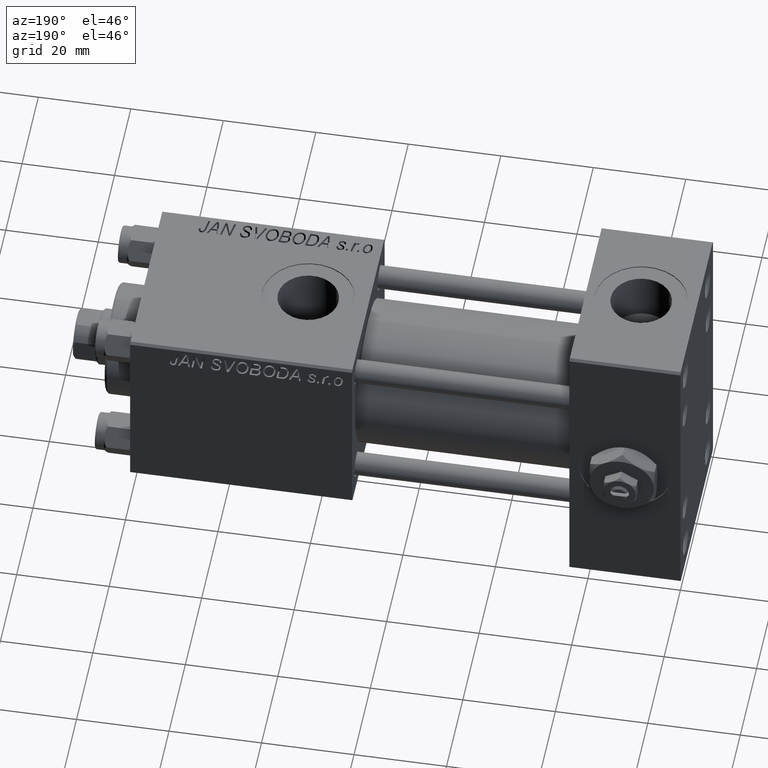
[diagram: clean part render]
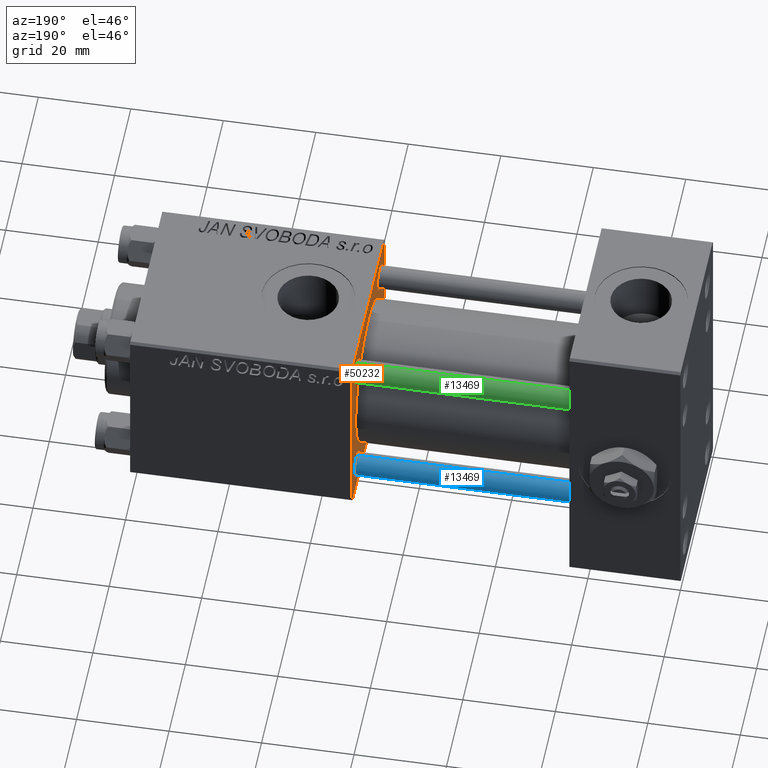
[diagram: same view with three faces highlighted in distinct colors, each labeled with its STEP entity id]
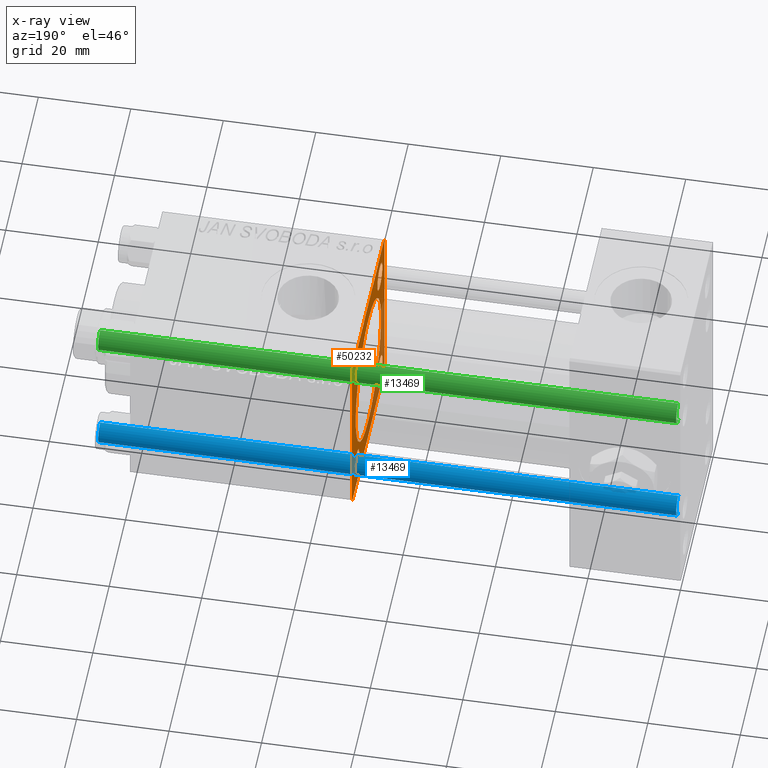
[diagram: x-ray of the same camera — body ghosted, the three highlighted faces saturated]
A machine part, auxiliary view with three faces highlighted in distinct colors.
The next image is the same camera in x-ray (body ghosted, the three faces saturated) — at least one of them is partly hidden behind the body in this view.
Their STEP definitions:

[orange] entity #50232 — the highlighted planar face has unit normal (-1, 0, 0).
#14 = LINE ( 'NONE', #50647, #41005 ) ;
#821 = DIRECTION ( 'NONE',  ( 0.000000000000000000, 0.000000000000000000, 1.000000000000000000 ) ) ;
#933 = EDGE_CURVE ( 'NONE', #18471, #26745, #13294, .T. ) ;
#1579 = AXIS2_PLACEMENT_3D ( 'NONE', #20733, #11840, #7910 ) ;
#1607 = ORIENTED_EDGE ( 'NONE', *, *, #14541, .T. ) ;
#1631 = CARTESIAN_POINT ( 'NONE',  ( 71.00000000000001421, -7.038826752868131828E-16, -15.50000000000000000 ) ) ;
#1690 = AXIS2_PLACEMENT_3D ( 'NONE', #20194, #44464, #8160 ) ;
#1750 = DIRECTION ( 'NONE',  ( 0.000000000000000000, 0.000000000000000000, -1.000000000000000000 ) ) ;
#2296 = CARTESIAN_POINT ( 'NONE',  ( 71.00000000000001421, 19.99999999999999645, 20.00000000000000000 ) ) ;
#2523 = DIRECTION ( 'NONE',  ( 1.000000000000000000, 0.000000000000000000, 0.000000000000000000 ) ) ;
#2764 = VERTEX_POINT ( 'NONE', #47558 ) ;
#2965 = DIRECTION ( 'NONE',  ( 1.000000000000000000, 0.000000000000000000, 0.000000000000000000 ) ) ;
#3031 = CARTESIAN_POINT ( 'NONE',  ( 71.00000000000001421, -20.00000000000000355, 19.49999999999999645 ) ) ;
#3067 = DIRECTION ( 'NONE',  ( 0.000000000000000000, -1.000000000000000000, -8.673617379884035472E-17 ) ) ;
#3940 = VERTEX_POINT ( 'NONE', #9694 ) ;
#3988 = AXIS2_PLACEMENT_3D ( 'NONE', #38320, #2523, #34413 ) ;
#4296 = EDGE_CURVE ( 'NONE', #34609, #42202, #51476, .T. ) ;
#4466 = DIRECTION ( 'NONE',  ( 0.000000000000000000, 0.7071067811865474617, -0.7071067811865474617 ) ) ;
#4740 = EDGE_CURVE ( 'NONE', #37653, #11017, #18156, .T. ) ;
#4786 = FACE_BOUND ( 'NONE', #42672, .T. ) ;
#5438 = DIRECTION ( 'NONE',  ( 0.000000000000000000, 8.673617379884036705E-17, -1.000000000000000000 ) ) ;
#5608 = EDGE_LOOP ( 'NONE', ( #14277, #1607 ) ) ;
#5635 = EDGE_CURVE ( 'NONE', #40378, #18471, #40752, .T. ) ;
#5703 = VERTEX_POINT ( 'NONE', #44149 ) ;
#5793 = CARTESIAN_POINT ( 'NONE',  ( 71.00000000000001421, -19.75000000000000000, 19.75000000000000000 ) ) ;
#7348 = EDGE_LOOP ( 'NONE', ( #34075, #43562 ) ) ;
#7397 = VECTOR ( 'NONE', #3067, 1000.000000000000000 ) ;
#7533 = AXIS2_PLACEMENT_3D ( 'NONE', #27433, #43325, #7553 ) ;
#7553 = DIRECTION ( 'NONE',  ( 0.000000000000000000, 0.000000000000000000, 1.000000000000000000 ) ) ;
#7578 = EDGE_CURVE ( 'NONE', #40378, #3940, #34692, .T. ) ;
#7638 = CARTESIAN_POINT ( 'NONE',  ( 71.00000000000001421, -14.15000000000000036, -14.15000000000000036 ) ) ;
#7910 = DIRECTION ( 'NONE',  ( -0.000000000000000000, 0.000000000000000000, 1.000000000000000000 ) ) ;
#8160 = DIRECTION ( 'NONE',  ( 0.000000000000000000, 0.000000000000000000, 1.000000000000000000 ) ) ;
#8443 = CARTESIAN_POINT ( 'NONE',  ( 71.00000000000001421, -2.602085213965210642E-15, 15.50000000000000000 ) ) ;
#8703 = FACE_BOUND ( 'NONE', #5608, .T. ) ;
#8892 = VECTOR ( 'NONE', #41229, 1000.000000000000000 ) ;
#9031 = EDGE_CURVE ( 'NONE', #37667, #5703, #34036, .T. ) ;
#9299 = CARTESIAN_POINT ( 'NONE',  ( 71.00000000000001421, -2.602085213965210642E-15, 0.000000000000000000 ) ) ;
#9694 = CARTESIAN_POINT ( 'NONE',  ( 71.00000000000001421, -19.50000000000000355, 19.99999999999999645 ) ) ;
#10116 = LINE ( 'NONE', #17708, #26950 ) ;
#10301 = ORIENTED_EDGE ( 'NONE', *, *, #5635, .T. ) ;
#10346 = ORIENTED_EDGE ( 'NONE', *, *, #29392, .T. ) ;
#10399 = DIRECTION ( 'NONE',  ( 1.000000000000000000, 0.000000000000000000, 0.000000000000000000 ) ) ;
#10814 = ORIENTED_EDGE ( 'NONE', *, *, #19829, .T. ) ;
#11017 = VERTEX_POINT ( 'NONE', #31880 ) ;
#11840 = DIRECTION ( 'NONE',  ( -1.000000000000000000, 0.000000000000000000, -0.000000000000000000 ) ) ;
#12319 = CARTESIAN_POINT ( 'NONE',  ( 71.00000000000001421, 19.99999999999999645, -19.50000000000000000 ) ) ;
#13294 = LINE ( 'NONE', #49288, #8892 ) ;
#14018 = VECTOR ( 'NONE', #4466, 1000.000000000000114 ) ;
#14277 = ORIENTED_EDGE ( 'NONE', *, *, #4296, .T. ) ;
#14431 = CARTESIAN_POINT ( 'NONE',  ( 71.00000000000001421, 14.15000000000000036, -11.15000000000001101 ) ) ;
#14541 = EDGE_CURVE ( 'NONE', #42202, #34609, #32575, .T. ) ;
#17219 = EDGE_CURVE ( 'NONE', #43189, #2764, #47898, .T. ) ;
#17286 = ORIENTED_EDGE ( 'NONE', *, *, #24345, .T. ) ;
#17702 = ORIENTED_EDGE ( 'NONE', *, *, #9031, .T. ) ;
#17708 = CARTESIAN_POINT ( 'NONE',  ( 71.00000000000001421, -20.00000000000000355, 19.99999999999999645 ) ) ;
#17883 = CARTESIAN_POINT ( 'NONE',  ( 71.00000000000001421, 14.15000000000000036, 17.15000000000003411 ) ) ;
#18147 = DIRECTION ( 'NONE',  ( 0.000000000000000000, 0.000000000000000000, 1.000000000000000000 ) ) ;
#18156 = CIRCLE ( 'NONE', #47322, 3.000000000000031974 ) ;
#18471 = VERTEX_POINT ( 'NONE', #29827 ) ;
#19829 = EDGE_CURVE ( 'NONE', #42987, #21002, #39420, .T. ) ;
#20145 = VECTOR ( 'NONE', #22700, 1000.000000000000000 ) ;
#20188 = AXIS2_PLACEMENT_3D ( 'NONE', #41976, #21390, #1750 ) ;
#20194 = CARTESIAN_POINT ( 'NONE',  ( 71.00000000000001421, 14.15000000000000036, -14.15000000000000036 ) ) ;
#20342 = CARTESIAN_POINT ( 'NONE',  ( 71.00000000000001421, -14.15000000000000036, -17.14999999999999147 ) ) ;
#20711 = EDGE_CURVE ( 'NONE', #38973, #2764, #10116, .T. ) ;
#20723 = EDGE_CURVE ( 'NONE', #20928, #29835, #36013, .T. ) ;
#20733 = CARTESIAN_POINT ( 'NONE',  ( 71.00000000000001421, 0.000000000000000000, 0.000000000000000000 ) ) ;
#20928 = VERTEX_POINT ( 'NONE', #1631 ) ;
#21002 = VERTEX_POINT ( 'NONE', #14431 ) ;
#21390 = DIRECTION ( 'NONE',  ( 1.000000000000000000, 0.000000000000000000, 0.000000000000000000 ) ) ;
#21747 = DIRECTION ( 'NONE',  ( -0.000000000000000000, 0.7071067811865474617, 0.7071067811865474617 ) ) ;
#22382 = AXIS2_PLACEMENT_3D ( 'NONE', #43372, #39200, #33830 ) ;
#22700 = DIRECTION ( 'NONE',  ( 0.000000000000000000, -1.000000000000000000, 0.000000000000000000 ) ) ;
#23336 = DIRECTION ( 'NONE',  ( 0.000000000000000000, 0.000000000000000000, 1.000000000000000000 ) ) ;
#23609 = AXIS2_PLACEMENT_3D ( 'NONE', #9299, #28664, #49226 ) ;
#23616 = FACE_BOUND ( 'NONE', #45890, .T. ) ;
#23636 = ORIENTED_EDGE ( 'NONE', *, *, #31727, .T. ) ;
#24184 = CARTESIAN_POINT ( 'NONE',  ( 71.00000000000001421, -19.74999999999973355, -19.75000000000028066 ) ) ;
#24265 = AXIS2_PLACEMENT_3D ( 'NONE', #7638, #43142, #23336 ) ;
#24345 = EDGE_CURVE ( 'NONE', #21002, #42987, #40077, .T. ) ;
#24664 = FACE_OUTER_BOUND ( 'NONE', #29366, .T. ) ;
#25366 = CIRCLE ( 'NONE', #32027, 3.000000000000031974 ) ;
#26339 = DIRECTION ( 'NONE',  ( 0.000000000000000000, 0.000000000000000000, 1.000000000000000000 ) ) ;
#26499 = CARTESIAN_POINT ( 'NONE',  ( 71.00000000000001421, 14.15000000000000036, -14.15000000000000036 ) ) ;
#26745 = VERTEX_POINT ( 'NONE', #12319 ) ;
#26950 = VECTOR ( 'NONE', #5438, 1000.000000000000000 ) ;
#27433 = CARTESIAN_POINT ( 'NONE',  ( 71.00000000000001421, -14.15000000000000036, 14.15000000000000036 ) ) ;
#27590 = CIRCLE ( 'NONE', #7533, 2.999999999999990674 ) ;
#27944 = ORIENTED_EDGE ( 'NONE', *, *, #7578, .F. ) ;
#28351 = DIRECTION ( 'NONE',  ( 0.000000000000000000, -0.7071067811865574537, 0.7071067811865376918 ) ) ;
#28664 = DIRECTION ( 'NONE',  ( 1.000000000000000000, 0.000000000000000000, 0.000000000000000000 ) ) ;
#28802 = CARTESIAN_POINT ( 'NONE',  ( 71.00000000000001421, -14.15000000000000036, -11.15000000000001101 ) ) ;
#28834 = FACE_BOUND ( 'NONE', #7348, .T. ) ;
#29284 = VECTOR ( 'NONE', #21747, 1000.000000000000114 ) ;
#29366 = EDGE_LOOP ( 'NONE', ( #47430, #40708, #42766, #31768, #27944, #10301, #40810, #23636 ) ) ;
#29392 = EDGE_CURVE ( 'NONE', #5703, #37667, #27590, .T. ) ;
#29827 = CARTESIAN_POINT ( 'NONE',  ( 71.00000000000001421, 19.99999999999999645, 19.50000000000000000 ) ) ;
#29835 = VERTEX_POINT ( 'NONE', #8443 ) ;
#29951 = EDGE_CURVE ( 'NONE', #38973, #3940, #41577, .T. ) ;
#30283 = LINE ( 'NONE', #50829, #20145 ) ;
#31188 = EDGE_CURVE ( 'NONE', #41763, #43189, #30283, .T. ) ;
#31727 = EDGE_CURVE ( 'NONE', #26745, #41763, #14, .T. ) ;
#31768 = ORIENTED_EDGE ( 'NONE', *, *, #29951, .T. ) ;
#31880 = CARTESIAN_POINT ( 'NONE',  ( 71.00000000000001421, 14.15000000000000036, 11.14999999999997016 ) ) ;
#31953 = PLANE ( 'NONE',  #1579 ) ;
#32027 = AXIS2_PLACEMENT_3D ( 'NONE', #46156, #10399, #26339 ) ;
#32155 = CARTESIAN_POINT ( 'NONE',  ( 71.00000000000001421, 19.74999999999999645, 19.74999999999999645 ) ) ;
#32575 = CIRCLE ( 'NONE', #24265, 2.999999999999990674 ) ;
#32787 = CIRCLE ( 'NONE', #23609, 15.50000000000000000 ) ;
#33227 = CARTESIAN_POINT ( 'NONE',  ( 71.00000000000001421, 14.15000000000000036, 14.15000000000000036 ) ) ;
#33830 = DIRECTION ( 'NONE',  ( 0.000000000000000000, 0.000000000000000000, 1.000000000000000000 ) ) ;
#34036 = CIRCLE ( 'NONE', #22382, 2.999999999999990674 ) ;
#34075 = ORIENTED_EDGE ( 'NONE', *, *, #4740, .T. ) ;
#34313 = EDGE_CURVE ( 'NONE', #29835, #20928, #32787, .T. ) ;
#34413 = DIRECTION ( 'NONE',  ( 0.000000000000000000, 0.000000000000000000, 1.000000000000000000 ) ) ;
#34609 = VERTEX_POINT ( 'NONE', #28802 ) ;
#34692 = LINE ( 'NONE', #2296, #7397 ) ;
#34708 = CARTESIAN_POINT ( 'NONE',  ( 71.00000000000001421, 14.15000000000000036, -17.14999999999999147 ) ) ;
#36013 = CIRCLE ( 'NONE', #20188, 15.50000000000000000 ) ;
#36216 = ORIENTED_EDGE ( 'NONE', *, *, #20723, .T. ) ;
#36282 = EDGE_CURVE ( 'NONE', #11017, #37653, #25366, .T. ) ;
#36393 = FACE_BOUND ( 'NONE', #46802, .T. ) ;
#37601 = ORIENTED_EDGE ( 'NONE', *, *, #34313, .T. ) ;
#37653 = VERTEX_POINT ( 'NONE', #17883 ) ;
#37667 = VERTEX_POINT ( 'NONE', #49694 ) ;
#38320 = CARTESIAN_POINT ( 'NONE',  ( 71.00000000000001421, -14.15000000000000036, -14.15000000000000036 ) ) ;
#38973 = VERTEX_POINT ( 'NONE', #3031 ) ;
#39200 = DIRECTION ( 'NONE',  ( 1.000000000000000000, 0.000000000000000000, 0.000000000000000000 ) ) ;
#39310 = VECTOR ( 'NONE', #28351, 999.9999999999998863 ) ;
#39420 = CIRCLE ( 'NONE', #46893, 2.999999999999990674 ) ;
#40077 = CIRCLE ( 'NONE', #1690, 2.999999999999990674 ) ;
#40378 = VERTEX_POINT ( 'NONE', #49420 ) ;
#40708 = ORIENTED_EDGE ( 'NONE', *, *, #17219, .T. ) ;
#40752 = LINE ( 'NONE', #32155, #14018 ) ;
#40810 = ORIENTED_EDGE ( 'NONE', *, *, #933, .T. ) ;
#41005 = VECTOR ( 'NONE', #43370, 1000.000000000000114 ) ;
#41229 = DIRECTION ( 'NONE',  ( 0.000000000000000000, 0.000000000000000000, -1.000000000000000000 ) ) ;
#41577 = LINE ( 'NONE', #5793, #29284 ) ;
#41763 = VERTEX_POINT ( 'NONE', #43624 ) ;
#41976 = CARTESIAN_POINT ( 'NONE',  ( 71.00000000000001421, -2.602085213965210642E-15, 0.000000000000000000 ) ) ;
#42202 = VERTEX_POINT ( 'NONE', #20342 ) ;
#42672 = EDGE_LOOP ( 'NONE', ( #17702, #10346 ) ) ;
#42766 = ORIENTED_EDGE ( 'NONE', *, *, #20711, .F. ) ;
#42987 = VERTEX_POINT ( 'NONE', #34708 ) ;
#43142 = DIRECTION ( 'NONE',  ( 1.000000000000000000, 0.000000000000000000, 0.000000000000000000 ) ) ;
#43189 = VERTEX_POINT ( 'NONE', #49518 ) ;
#43325 = DIRECTION ( 'NONE',  ( 1.000000000000000000, 0.000000000000000000, 0.000000000000000000 ) ) ;
#43370 = DIRECTION ( 'NONE',  ( -0.000000000000000000, -0.7071067811865474617, -0.7071067811865474617 ) ) ;
#43372 = CARTESIAN_POINT ( 'NONE',  ( 71.00000000000001421, -14.15000000000000036, 14.15000000000000036 ) ) ;
#43562 = ORIENTED_EDGE ( 'NONE', *, *, #36282, .T. ) ;
#43624 = CARTESIAN_POINT ( 'NONE',  ( 71.00000000000001421, 19.49999999999999645, -20.00000000000000000 ) ) ;
#44149 = CARTESIAN_POINT ( 'NONE',  ( 71.00000000000001421, -14.15000000000000036, 11.15000000000001279 ) ) ;
#44464 = DIRECTION ( 'NONE',  ( 1.000000000000000000, 0.000000000000000000, 0.000000000000000000 ) ) ;
#44961 = DIRECTION ( 'NONE',  ( 1.000000000000000000, 0.000000000000000000, 0.000000000000000000 ) ) ;
#45890 = EDGE_LOOP ( 'NONE', ( #37601, #36216 ) ) ;
#46156 = CARTESIAN_POINT ( 'NONE',  ( 71.00000000000001421, 14.15000000000000036, 14.15000000000000036 ) ) ;
#46802 = EDGE_LOOP ( 'NONE', ( #17286, #10814 ) ) ;
#46893 = AXIS2_PLACEMENT_3D ( 'NONE', #26499, #2965, #18147 ) ;
#47322 = AXIS2_PLACEMENT_3D ( 'NONE', #33227, #44961, #821 ) ;
#47430 = ORIENTED_EDGE ( 'NONE', *, *, #31188, .T. ) ;
#47558 = CARTESIAN_POINT ( 'NONE',  ( 71.00000000000001421, -20.00000000000000000, -19.50000000000002487 ) ) ;
#47898 = LINE ( 'NONE', #24184, #39310 ) ;
#49226 = DIRECTION ( 'NONE',  ( 0.000000000000000000, 0.000000000000000000, -1.000000000000000000 ) ) ;
#49288 = CARTESIAN_POINT ( 'NONE',  ( 71.00000000000001421, 19.99999999999999645, 20.00000000000000000 ) ) ;
#49420 = CARTESIAN_POINT ( 'NONE',  ( 71.00000000000001421, 19.49999999999999645, 20.00000000000000000 ) ) ;
#49518 = CARTESIAN_POINT ( 'NONE',  ( 71.00000000000001421, -19.50000000000001066, -20.00000000000000000 ) ) ;
#49694 = CARTESIAN_POINT ( 'NONE',  ( 71.00000000000001421, -14.15000000000000036, 17.14999999999999147 ) ) ;
#50232 = ADVANCED_FACE ( 'NONE', ( #4786, #28834, #36393, #8703, #23616, #24664 ), #31953, .T. ) ;
#50647 = CARTESIAN_POINT ( 'NONE',  ( 71.00000000000001421, 19.74999999999999645, -19.74999999999999645 ) ) ;
#50829 = CARTESIAN_POINT ( 'NONE',  ( 71.00000000000001421, 19.99999999999999645, -20.00000000000000000 ) ) ;
#51476 = CIRCLE ( 'NONE', #3988, 2.999999999999990674 ) ;

[blue] entity #13469 — the highlighted cylindrical surface (edge-blend (fillet) strip) has radius 2.5 mm, axis along (-1, 0, 0).
#584 = CARTESIAN_POINT ( 'NONE',  ( 0.000000000000000000, 0.000000000000000000, 125.5000000000000568 ) ) ;
#4180 = AXIS2_PLACEMENT_3D ( 'NONE', #48426, #19992, #20258 ) ;
#4964 = CIRCLE ( 'NONE', #51613, 2.500000000000000000 ) ;
#6126 = AXIS2_PLACEMENT_3D ( 'NONE', #45739, #38410, #18830 ) ;
#7799 = CIRCLE ( 'NONE', #6126, 2.500000000000000000 ) ;
#9642 = VERTEX_POINT ( 'NONE', #46377 ) ;
#13469 = ADVANCED_FACE ( 'NONE', ( #23928 ), #16859, .T. ) ;
#15187 = EDGE_CURVE ( 'NONE', #9642, #27916, #43011, .T. ) ;
#15872 = CARTESIAN_POINT ( 'NONE',  ( -2.500000000000000000, 0.000000000000000000, 0.5000000000000004441 ) ) ;
#16280 = CARTESIAN_POINT ( 'NONE',  ( 2.500000000000000000, 3.061616997868383141E-16, 126.0000000000000000 ) ) ;
#16552 = DIRECTION ( 'NONE',  ( 0.000000000000000000, 0.000000000000000000, -1.000000000000000000 ) ) ;
#16859 = CYLINDRICAL_SURFACE ( 'NONE', #4180, 2.500000000000000000 ) ;
#16948 = CARTESIAN_POINT ( 'NONE',  ( 2.500000000000000000, 3.061616997868383141E-16, 0.5000000000000004441 ) ) ;
#17950 = ORIENTED_EDGE ( 'NONE', *, *, #15187, .T. ) ;
#18329 = EDGE_CURVE ( 'NONE', #43347, #42278, #32471, .T. ) ;
#18715 = CARTESIAN_POINT ( 'NONE',  ( 2.500000000000000000, 3.061616997868383141E-16, 125.5000000000000568 ) ) ;
#18830 = DIRECTION ( 'NONE',  ( 1.000000000000000000, 0.000000000000000000, 0.000000000000000000 ) ) ;
#19992 = DIRECTION ( 'NONE',  ( -0.000000000000000000, -0.000000000000000000, -1.000000000000000000 ) ) ;
#20258 = DIRECTION ( 'NONE',  ( -1.000000000000000000, 0.000000000000000000, 0.000000000000000000 ) ) ;
#23928 = FACE_OUTER_BOUND ( 'NONE', #49926, .T. ) ;
#25621 = ORIENTED_EDGE ( 'NONE', *, *, #36799, .T. ) ;
#27120 = CARTESIAN_POINT ( 'NONE',  ( -2.500000000000000000, 0.000000000000000000, 126.0000000000000000 ) ) ;
#27916 = VERTEX_POINT ( 'NONE', #15872 ) ;
#32471 = LINE ( 'NONE', #16280, #43515 ) ;
#32480 = DIRECTION ( 'NONE',  ( 1.000000000000000000, 0.000000000000000000, 0.000000000000000000 ) ) ;
#34229 = ORIENTED_EDGE ( 'NONE', *, *, #50271, .T. ) ;
#36799 = EDGE_CURVE ( 'NONE', #27916, #42278, #7799, .T. ) ;
#38094 = DIRECTION ( 'NONE',  ( -0.000000000000000000, -0.000000000000000000, -1.000000000000000000 ) ) ;
#38410 = DIRECTION ( 'NONE',  ( -0.000000000000000000, -0.000000000000000000, 1.000000000000000000 ) ) ;
#42278 = VERTEX_POINT ( 'NONE', #16948 ) ;
#43011 = LINE ( 'NONE', #27120, #50899 ) ;
#43347 = VERTEX_POINT ( 'NONE', #18715 ) ;
#43515 = VECTOR ( 'NONE', #48627, 1000.000000000000000 ) ;
#45739 = CARTESIAN_POINT ( 'NONE',  ( 0.000000000000000000, 0.000000000000000000, 0.5000000000000004441 ) ) ;
#46377 = CARTESIAN_POINT ( 'NONE',  ( -2.500000000000000000, 0.000000000000000000, 125.5000000000000568 ) ) ;
#48426 = CARTESIAN_POINT ( 'NONE',  ( 0.000000000000000000, 0.000000000000000000, 126.0000000000000000 ) ) ;
#48627 = DIRECTION ( 'NONE',  ( -0.000000000000000000, -0.000000000000000000, -1.000000000000000000 ) ) ;
#49926 = EDGE_LOOP ( 'NONE', ( #50979, #34229, #17950, #25621 ) ) ;
#50271 = EDGE_CURVE ( 'NONE', #43347, #9642, #4964, .T. ) ;
#50899 = VECTOR ( 'NONE', #38094, 1000.000000000000000 ) ;
#50979 = ORIENTED_EDGE ( 'NONE', *, *, #18329, .F. ) ;
#51613 = AXIS2_PLACEMENT_3D ( 'NONE', #584, #16552, #32480 ) ;

[green] entity #13469 — the highlighted cylindrical surface (edge-blend (fillet) strip) has radius 2.5 mm, axis along (1, 0, 0).
#584 = CARTESIAN_POINT ( 'NONE',  ( 0.000000000000000000, 0.000000000000000000, 125.5000000000000568 ) ) ;
#4180 = AXIS2_PLACEMENT_3D ( 'NONE', #48426, #19992, #20258 ) ;
#4964 = CIRCLE ( 'NONE', #51613, 2.500000000000000000 ) ;
#6126 = AXIS2_PLACEMENT_3D ( 'NONE', #45739, #38410, #18830 ) ;
#7799 = CIRCLE ( 'NONE', #6126, 2.500000000000000000 ) ;
#9642 = VERTEX_POINT ( 'NONE', #46377 ) ;
#13469 = ADVANCED_FACE ( 'NONE', ( #23928 ), #16859, .T. ) ;
#15187 = EDGE_CURVE ( 'NONE', #9642, #27916, #43011, .T. ) ;
#15872 = CARTESIAN_POINT ( 'NONE',  ( -2.500000000000000000, 0.000000000000000000, 0.5000000000000004441 ) ) ;
#16280 = CARTESIAN_POINT ( 'NONE',  ( 2.500000000000000000, 3.061616997868383141E-16, 126.0000000000000000 ) ) ;
#16552 = DIRECTION ( 'NONE',  ( 0.000000000000000000, 0.000000000000000000, -1.000000000000000000 ) ) ;
#16859 = CYLINDRICAL_SURFACE ( 'NONE', #4180, 2.500000000000000000 ) ;
#16948 = CARTESIAN_POINT ( 'NONE',  ( 2.500000000000000000, 3.061616997868383141E-16, 0.5000000000000004441 ) ) ;
#17950 = ORIENTED_EDGE ( 'NONE', *, *, #15187, .T. ) ;
#18329 = EDGE_CURVE ( 'NONE', #43347, #42278, #32471, .T. ) ;
#18715 = CARTESIAN_POINT ( 'NONE',  ( 2.500000000000000000, 3.061616997868383141E-16, 125.5000000000000568 ) ) ;
#18830 = DIRECTION ( 'NONE',  ( 1.000000000000000000, 0.000000000000000000, 0.000000000000000000 ) ) ;
#19992 = DIRECTION ( 'NONE',  ( -0.000000000000000000, -0.000000000000000000, -1.000000000000000000 ) ) ;
#20258 = DIRECTION ( 'NONE',  ( -1.000000000000000000, 0.000000000000000000, 0.000000000000000000 ) ) ;
#23928 = FACE_OUTER_BOUND ( 'NONE', #49926, .T. ) ;
#25621 = ORIENTED_EDGE ( 'NONE', *, *, #36799, .T. ) ;
#27120 = CARTESIAN_POINT ( 'NONE',  ( -2.500000000000000000, 0.000000000000000000, 126.0000000000000000 ) ) ;
#27916 = VERTEX_POINT ( 'NONE', #15872 ) ;
#32471 = LINE ( 'NONE', #16280, #43515 ) ;
#32480 = DIRECTION ( 'NONE',  ( 1.000000000000000000, 0.000000000000000000, 0.000000000000000000 ) ) ;
#34229 = ORIENTED_EDGE ( 'NONE', *, *, #50271, .T. ) ;
#36799 = EDGE_CURVE ( 'NONE', #27916, #42278, #7799, .T. ) ;
#38094 = DIRECTION ( 'NONE',  ( -0.000000000000000000, -0.000000000000000000, -1.000000000000000000 ) ) ;
#38410 = DIRECTION ( 'NONE',  ( -0.000000000000000000, -0.000000000000000000, 1.000000000000000000 ) ) ;
#42278 = VERTEX_POINT ( 'NONE', #16948 ) ;
#43011 = LINE ( 'NONE', #27120, #50899 ) ;
#43347 = VERTEX_POINT ( 'NONE', #18715 ) ;
#43515 = VECTOR ( 'NONE', #48627, 1000.000000000000000 ) ;
#45739 = CARTESIAN_POINT ( 'NONE',  ( 0.000000000000000000, 0.000000000000000000, 0.5000000000000004441 ) ) ;
#46377 = CARTESIAN_POINT ( 'NONE',  ( -2.500000000000000000, 0.000000000000000000, 125.5000000000000568 ) ) ;
#48426 = CARTESIAN_POINT ( 'NONE',  ( 0.000000000000000000, 0.000000000000000000, 126.0000000000000000 ) ) ;
#48627 = DIRECTION ( 'NONE',  ( -0.000000000000000000, -0.000000000000000000, -1.000000000000000000 ) ) ;
#49926 = EDGE_LOOP ( 'NONE', ( #50979, #34229, #17950, #25621 ) ) ;
#50271 = EDGE_CURVE ( 'NONE', #43347, #9642, #4964, .T. ) ;
#50899 = VECTOR ( 'NONE', #38094, 1000.000000000000000 ) ;
#50979 = ORIENTED_EDGE ( 'NONE', *, *, #18329, .F. ) ;
#51613 = AXIS2_PLACEMENT_3D ( 'NONE', #584, #16552, #32480 ) ;